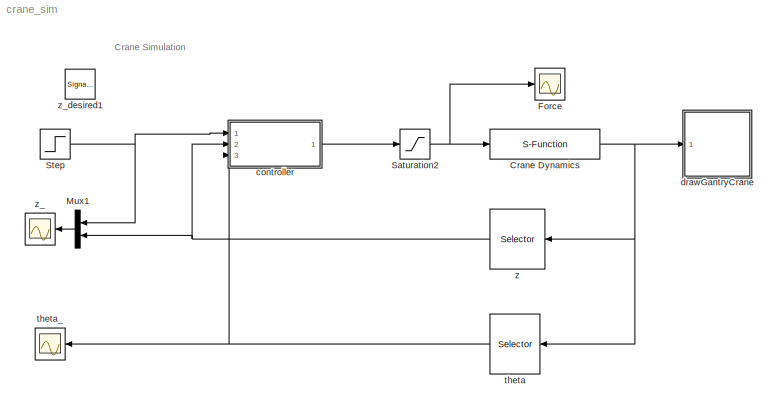
MODEL crane_sim
KIND model
BLOCK [S-Function] Crane Dynamics
  EnableBusSupport = off
  FunctionName = crane_dynamics
  Parameters = P
  Ports = [1, 1]
  SID = 11
BLOCK [Scope] Force
  DataFormat = StructureWithTime
  Floating = off
  LimitDataPoints = off
  NumInputPorts = 1
  Ports = [1]
  SID = 21
  SampleTime = 0
  ShowLegends = off
  TimeRange = 100
  YMax = 1250
  YMin = -1000
BLOCK [Mux] Mux1
  DisplayOption = bar
  Inputs = 2
  Ports = [2, 1]
  SID = 24
BLOCK [Saturate] Saturation2
  InputPortMap = u0
  LowerLimit = -P.F_max
  Ports = [1, 1]
  SID = 37
  UpperLimit = P.F_max
BLOCK [Step] Step
  After = 7
  SID = 52
  SampleTime = 0
  Time = 20
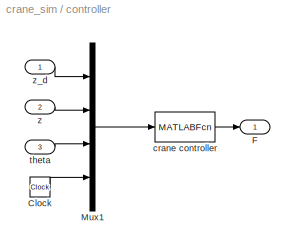
BLOCK [SubSystem] controller
  Ports = [3, 1]
  RequestExecContextInheritance = off
  SID = 38
BLOCK [Clock] controller/Clock
  SID = 41
BLOCK [Outport] controller/F
  IconDisplay = Port number
  SID = 44
BLOCK [Mux] controller/Mux1
  DisplayOption = bar
  Ports = [4, 1]
  SID = 42
BLOCK [MATLABFcn] controller/crane controller
  MATLABFcn = crane_ctrl(u,P)
  OutputDimensions = 1
  Ports = [1, 1]
  SID = 43
  SampleTime = P.Ts
BLOCK [Inport] controller/theta
  IconDisplay = Port number
  Port = 3
  SID = 50
BLOCK [Inport] controller/z
  IconDisplay = Port number
  Port = 2
  SID = 40
BLOCK [Inport] controller/z_d
  IconDisplay = Port number
  SID = 39
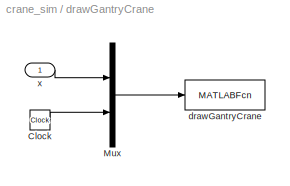
BLOCK [SubSystem] drawGantryCrane
  Ports = [1]
  RequestExecContextInheritance = off
  SID = 4
BLOCK [Clock] drawGantryCrane/Clock
  SID = 6
BLOCK [Mux] drawGantryCrane/Mux
  DisplayOption = bar
  Inputs = 2
  Ports = [2, 1]
  SID = 7
BLOCK [MATLABFcn] drawGantryCrane/drawGantryCrane
  MATLABFcn = drawGantryCrane(u,bar,crane,L1,R1)\n
  OutputDimensions = 0
  Ports = [1]
  SID = 8
  SampleTime = 0.1
BLOCK [Inport] drawGantryCrane/x
  IconDisplay = Port number
  SID = 5
BLOCK [Selector] theta
  Indices = [4]
  InputPortWidth = 4
  Ports = [1, 1]
  SID = 46
BLOCK [Scope] theta_
  DataFormat = StructureWithTime
  Floating = off
  LimitDataPoints = off
  NumInputPorts = 1
  Ports = [1]
  SID = 23
  SampleTime = 0
  SaveName = ScopeData1
  ShowLegends = off
  TimeRange = 100
  YMax = 0.2
  YMin = -0.2
BLOCK [Selector] z
  Indices = [3]
  InputPortWidth = 4
  Ports = [1, 1]
  SID = 49
BLOCK [Scope] z_
  DataFormat = StructureWithTime
  Floating = off
  LimitDataPoints = off
  NumInputPorts = 1
  Ports = [1]
  SID = 25
  SampleTime = 0
  SaveName = ScopeData2
  ShowLegends = off
  TimeRange = 100
  YMax = 7
  YMin = 7
BLOCK [SignalGenerator] z_desired1
  Amplitude = 7
  Frequency = .02
  Ports = [0, 1]
  SID = 51
  WaveForm = square
ANNOTATION (root): Crane Simulation
NET Crane Dynamics:1 -> drawGantryCrane:1, theta:1, z:1
LINE Mux1:1 -> z_:1
NET Saturation2:1 -> Crane Dynamics:1, Force:1
NET Step:1 -> Mux1:1, controller:1
LINE controller/Clock:1 -> controller/Mux1:4
LINE controller/Mux1:1 -> controller/crane controller:1
LINE controller/crane controller:1 -> controller/F:1
LINE controller/theta:1 -> controller/Mux1:3
LINE controller/z:1 -> controller/Mux1:2
LINE controller/z_d:1 -> controller/Mux1:1
LINE controller:1 -> Saturation2:1
LINE drawGantryCrane/Clock:1 -> drawGantryCrane/Mux:2
LINE drawGantryCrane/Mux:1 -> drawGantryCrane/drawGantryCrane:1
LINE drawGantryCrane/x:1 -> drawGantryCrane/Mux:1
NET theta:1 -> controller:3, theta_:1
NET z:1 -> Mux1:2, controller:2
note: NET lines group one-source signal fan-out (src -> all destinations, sorted); 1:1 wires keep LINE
